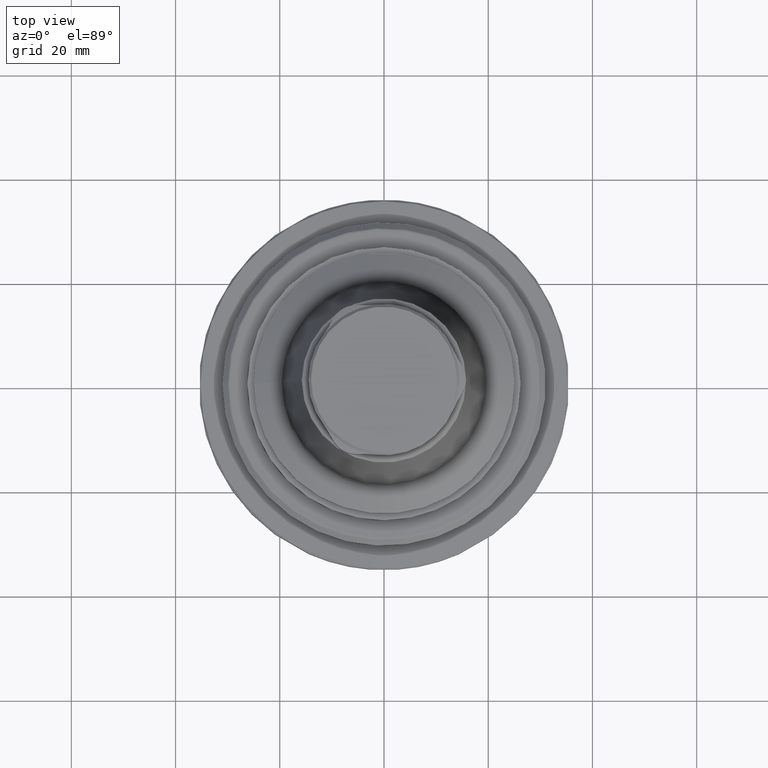
[diagram: clean part render]
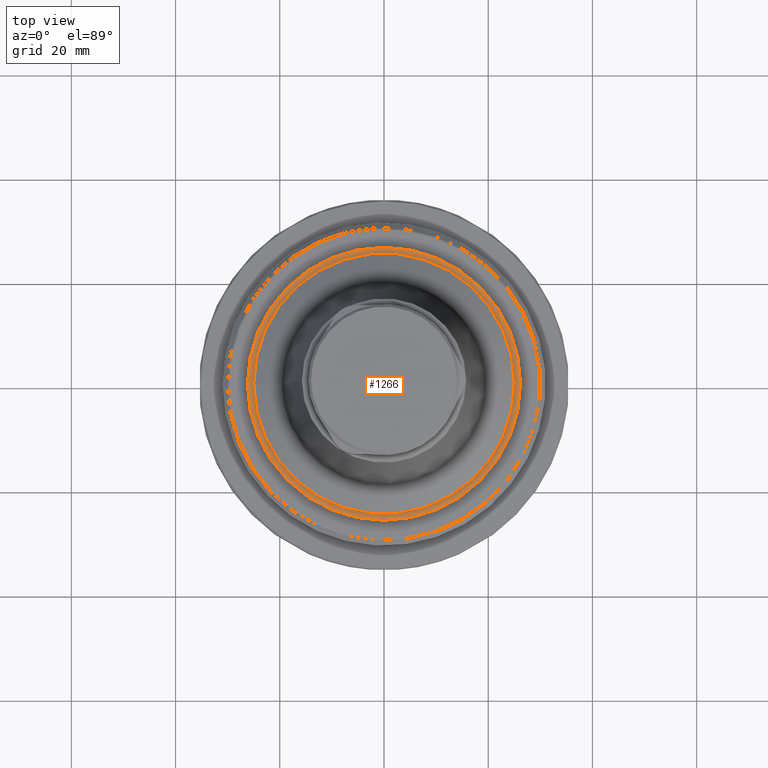
[diagram: same view with one face highlighted and labeled with its STEP entity id]
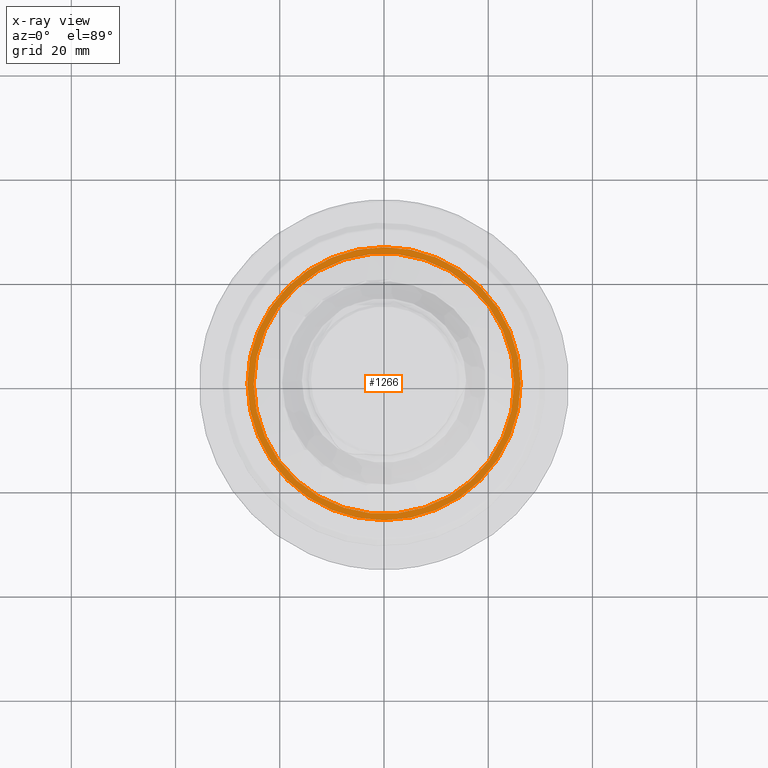
[diagram: x-ray of the same camera — body ghosted, the highlighted face saturated]
A machine part, top view. The second image highlights one B-rep face of the part: STEP entity #1266.
The next image is the same camera in x-ray: the body ghosted, the highlighted face saturated — about 0% of this face is hidden behind the body in this view.
In plain terms, the highlighted planar face has unit normal (0, -0, 1).
Its self-contained STEP definition (entity closure, byte-faithful):
#96=CIRCLE('',#1409,25.);
#103=CIRCLE('',#1422,26.2);
#469=ORIENTED_EDGE('',*,*,#694,.F.);
#470=ORIENTED_EDGE('',*,*,#687,.T.);
#687=EDGE_CURVE('',#824,#824,#96,.T.);
#694=EDGE_CURVE('',#831,#831,#103,.T.);
#824=VERTEX_POINT('',#2200);
#831=VERTEX_POINT('',#2220);
#1013=EDGE_LOOP('',(#469));
#1014=EDGE_LOOP('',(#470));
#1143=FACE_BOUND('',#1013,.T.);
#1144=FACE_BOUND('',#1014,.T.);
#1190=PLANE('',#1421);
#1266=ADVANCED_FACE('',(#1143,#1144),#1190,.T.);
#1409=AXIS2_PLACEMENT_3D('',#2199,#1708,#1709);
#1421=AXIS2_PLACEMENT_3D('',#2218,#1732,#1733);
#1422=AXIS2_PLACEMENT_3D('',#2219,#1734,#1735);
#1708=DIRECTION('',(1.09102105407346E-16,-6.68035657486175E-33,-1.));
#1709=DIRECTION('',(-1.,6.12303176911189E-17,-1.09102105407346E-16));
#1732=DIRECTION('',(7.81689446264268E-18,-6.38359491786664E-17,1.));
#1733=DIRECTION('',(6.12303176911189E-17,1.,6.38359491786664E-17));
#1734=DIRECTION('',(-7.81689446264268E-18,6.38359491786664E-17,-1.));
#1735=DIRECTION('',(-1.,6.12303176911189E-17,7.81689446264269E-18));
#2199=CARTESIAN_POINT('',(5.0731267217448E-15,-3.10629160859738E-31,8.50111069989303));
#2200=CARTESIAN_POINT('',(-25.,1.53075794227797E-15,8.50111069989302));
#2218=CARTESIAN_POINT('',(5.0731267217448E-15,-6.71356039298659E-31,8.50111069989303));
#2219=CARTESIAN_POINT('',(-3.35415815699139E-16,-3.40189261485037E-31,8.50111069989303));
#2220=CARTESIAN_POINT('',(-26.2,1.60423432350731E-15,8.50111069989303));